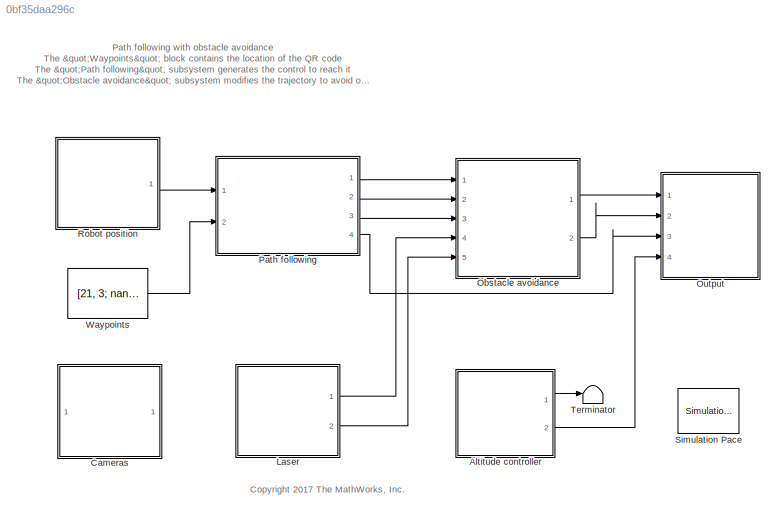
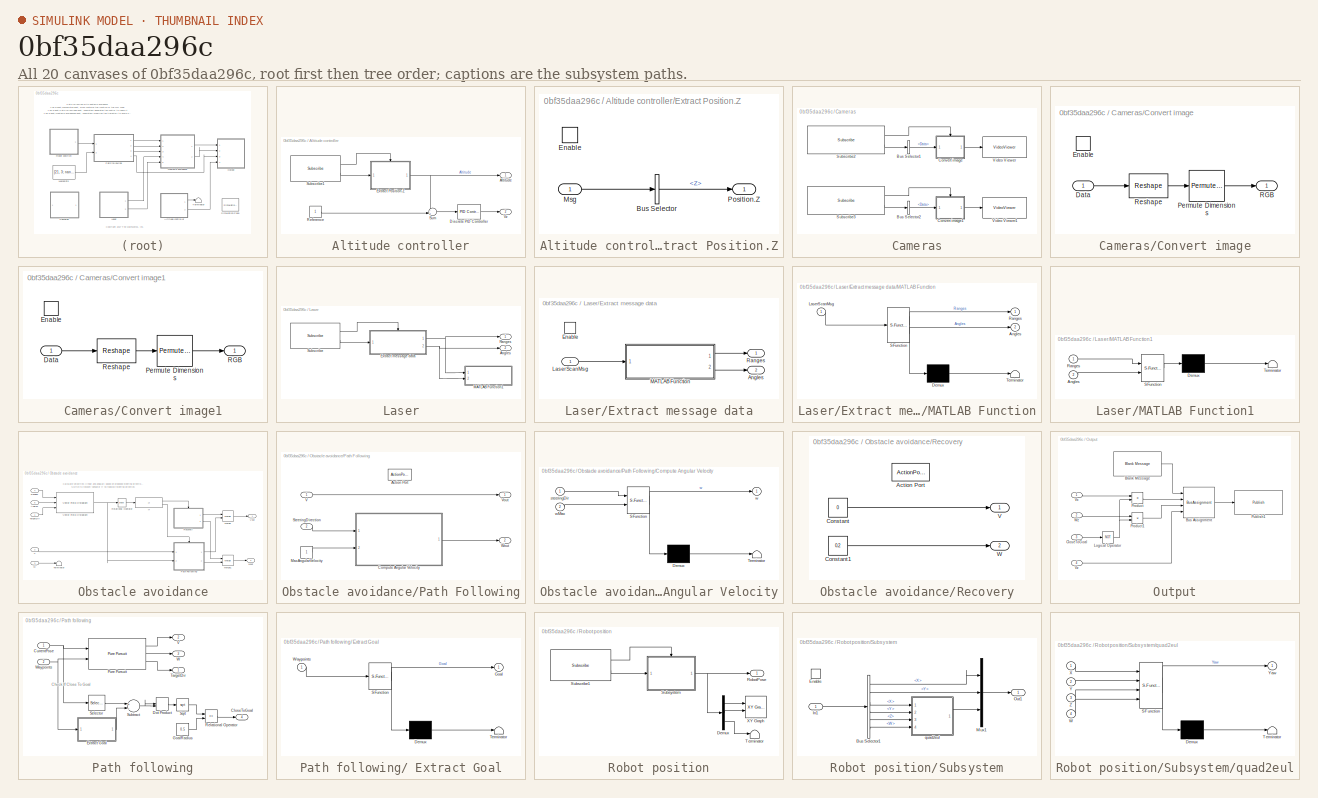
[diagram: thumbnail index - all 20 canvases of the model, root first then tree order]
MODEL slx_0bf35daa296c
KIND model
CONFIG AbsTol = auto
CONFIG EnableMultiTasking = on
CONFIG FixedStep = 0.1
CONFIG MaxStep = auto
CONFIG MinStep = auto
CONFIG RelTol = 1e-3
CONFIG SampleTimeConstraint = Unconstrained
CONFIG Solver = FixedStepDiscrete
CONFIG SolverName = FixedStepDiscrete
CONFIG StartTime = 0.0
CONFIG StopTime = Inf
WORKSPACE source: MAT-file member
WORKSPACE SL_ROS_VariableLengthArrays_MaxSizes: struct (value not decoded)
BLOCK [SubSystem] Altitude controller
  Ports = [0, 2]
  RequestExecContextInheritance = off
  Variant = off
BLOCK [Outport] Altitude controller/Altitude
  IconDisplay = Port number
BLOCK [Reference] Altitude controller/Discrete PID Controller  REF=simulink/Continuous/PID Controller
  Ports = [1, 1]
  SourceBlock = simulink/Continuous/PID Controller
  SourceProductBaseCode = SL
  SourceProductName = Simulink
  SourceType = PID 1dof
BLOCK [SubSystem] Altitude controller/Extract Position.Z
  Ports = [1, 1, 1]
  RequestExecContextInheritance = off
  Variant = off
BLOCK [BusSelector] Altitude controller/Extract Position.Z/Bus Selector
  OutputAsBus = off
  OutputSignals = Pose.Pose.Position.Z
  Ports = [1, 1]
BLOCK [EnablePort] Altitude controller/Extract Position.Z/Enable
  Ports = []
BLOCK [Inport] Altitude controller/Extract Position.Z/Msg
  IconDisplay = Port number
BLOCK [Outport] Altitude controller/Extract Position.Z/Position.Z
  IconDisplay = Port number
BLOCK [Constant] Altitude controller/Reference
BLOCK [Reference] Altitude controller/Subscribe1  REF=robotlib/Subscribe
  Ports = [0, 2]
  SourceBlock = robotlib/Subscribe
  SourceLibraryInfo = This block requires Robotics System Toolbox
  SourceProductBaseCode = RO
  SourceProductName = Robotics System Toolbox
  SourceType = ROS Subscribe
BLOCK [Sum] Altitude controller/Sum
  IconShape = round
  InputSameDT = off
  Inputs = -+|
  OutDataTypeStr = Inherit: Inherit via internal rule
  Ports = [2, 1]
  SaturateOnIntegerOverflow = off
BLOCK [Outport] Altitude controller/Vz
  IconDisplay = Port number
  Port = 2
BLOCK [SubSystem] Cameras
  Ports = []
  RequestExecContextInheritance = off
  Variant = off
BLOCK [BusSelector] Cameras/Bus Selector1
  DialogController = Simulink.DDGSource_BusSelector
  OutputAsBus = off
  OutputSignals = Data
  Ports = [1, 1]
BLOCK [BusSelector] Cameras/Bus Selector2
  DialogController = Simulink.DDGSource_BusSelector
  OutputAsBus = off
  OutputSignals = Data
  Ports = [1, 1]
BLOCK [SubSystem] Cameras/Convert image
  Ports = [1, 1, 1]
  RequestExecContextInheritance = off
  Variant = off
BLOCK [Inport] Cameras/Convert image/Data
  IconDisplay = Port number
BLOCK [EnablePort] Cameras/Convert image/Enable
  Ports = []
BLOCK [PermuteDimensions] Cameras/Convert image/Permute Dimensions
  Order = [3 2 1]
BLOCK [Outport] Cameras/Convert image/RGB
  IconDisplay = Port number
BLOCK [Reshape] Cameras/Convert image/Reshape
  OutputDimensionality = Customize
  OutputDimensions = [3 640 360]
  Ports = [1, 1]
BLOCK [SubSystem] Cameras/Convert image1
  Ports = [1, 1, 1]
  RequestExecContextInheritance = off
  Variant = off
BLOCK [Inport] Cameras/Convert image1/Data
  IconDisplay = Port number
BLOCK [EnablePort] Cameras/Convert image1/Enable
  Ports = []
BLOCK [PermuteDimensions] Cameras/Convert image1/Permute Dimensions
  Order = [3 2 1]
BLOCK [Outport] Cameras/Convert image1/RGB
  IconDisplay = Port number
BLOCK [Reshape] Cameras/Convert image1/Reshape
  OutputDimensionality = Customize
  OutputDimensions = [3 640 360]
  Ports = [1, 1]
BLOCK [Reference] Cameras/Subscribe2  REF=robotlib/Subscribe
  Ports = [0, 2]
  SourceBlock = robotlib/Subscribe
  SourceLibraryInfo = This block requires Robotics System Toolbox
  SourceProductBaseCode = RO
  SourceProductName = Robotics System Toolbox
  SourceType = ROS Subscribe
BLOCK [Reference] Cameras/Subscribe3  REF=robotlib/Subscribe
  Ports = [0, 2]
  SourceBlock = robotlib/Subscribe
  SourceLibraryInfo = This block requires Robotics System Toolbox
  SourceProductBaseCode = RO
  SourceProductName = Robotics System Toolbox
  SourceType = ROS Subscribe
BLOCK [VideoViewer] Cameras/Video Viewer
  FigPos = [947.909090909091 493.709090909091 609.163636363636 376.145454545455]
  Ports = [1]
  ScopeSpecificationString = vipscopes.VideoViewerScopeCfg('CurrentConfiguration', extmgr.ConfigurationSet(extmgr.Configuration('Core','General UI',true),extmgr.Configuration('Core','Source UI',true),extmgr.Configuration('Sources','WiredSimulink',true),extmgr.Configuration('Visuals','Video',true),extmgr.Configuration('Tools','Image Navigation Tools',true),extmgr.Configuration('Tools','Image Tool',true),extmgr.Configuration('T...<+127ch>
  colormapValue = gray(256)
BLOCK [VideoViewer] Cameras/Video Viewer1
  FigPos = [947.909090909091 1019.09090909091 609.163636363636 376.145454545455]
  Ports = [1]
  ScopeSpecificationString = vipscopes.VideoViewerScopeCfg('CurrentConfiguration', extmgr.ConfigurationSet(extmgr.Configuration('Core','General UI',true),extmgr.Configuration('Core','Source UI',true),extmgr.Configuration('Sources','WiredSimulink',true),extmgr.Configuration('Visuals','Video',true),extmgr.Configuration('Tools','Image Navigation Tools',true),extmgr.Configuration('Tools','Image Tool',true),extmgr.Configuration('T...<+127ch>
  colormapValue = gray(256)
BLOCK [SubSystem] Laser
  Ports = [0, 2]
  RequestExecContextInheritance = off
  Variant = off
BLOCK [Outport] Laser/Angles
  IconDisplay = Port number
  Port = 2
BLOCK [SubSystem] Laser/Extract message data
  Ports = [1, 2, 1]
  RequestExecContextInheritance = off
  Variant = off
BLOCK [Outport] Laser/Extract message data/Angles
  IconDisplay = Port number
  Port = 2
BLOCK [EnablePort] Laser/Extract message data/Enable
  Ports = []
BLOCK [Inport] Laser/Extract message data/LaserScanMsg
  IconDisplay = Port number
BLOCK [SubSystem] Laser/Extract message data/MATLAB Function
  ErrorFcn = Stateflow.Translate.translate
  PermitHierarchicalResolution = ExplicitOnly
  Ports = [1, 2]
  RequestExecContextInheritance = off
  SFBlockType = MATLAB Function
  TreatAsAtomicUnit = on
  Variant = off
BLOCK [Demux] Laser/Extract message data/MATLAB Function/ Demux 
  Outputs = 1
  Ports = [1, 1]
BLOCK [S-Function] Laser/Extract message data/MATLAB Function/ SFunction 
  EnableBusSupport = on
  FunctionName = sf_sfun
  PortCounts = [1 3]
  Ports = [1, 3]
  SFcnIsStateOwnerBlock = off
  SFunctionDeploymentMode = off
  Tag = Stateflow S-Function pathFollowingWithObstacleAvoidance 5
BLOCK [Terminator] Laser/Extract message data/MATLAB Function/ Terminator 
BLOCK [Outport] Laser/Extract message data/MATLAB Function/Angles
  IconDisplay = Port number
  Port = 2
BLOCK [Inport] Laser/Extract message data/MATLAB Function/LaserScanMsg
  IconDisplay = Port number
BLOCK [Outport] Laser/Extract message data/MATLAB Function/Ranges
  IconDisplay = Port number
BLOCK [Outport] Laser/Extract message data/Ranges
  IconDisplay = Port number
BLOCK [SubSystem] Laser/MATLAB Function1
  ErrorFcn = Stateflow.Translate.translate
  PermitHierarchicalResolution = ExplicitOnly
  Ports = [2]
  RequestExecContextInheritance = off
  SFBlockType = MATLAB Function
  TreatAsAtomicUnit = on
  Variant = off
BLOCK [Demux] Laser/MATLAB Function1/ Demux 
  Outputs = 1
  Ports = [1, 1]
BLOCK [S-Function] Laser/MATLAB Function1/ SFunction 
  EnableBusSupport = on
  FunctionName = sf_sfun
  PortCounts = [2 1]
  Ports = [2, 1]
  SFcnIsStateOwnerBlock = off
  SFunctionDeploymentMode = off
  Tag = Stateflow S-Function pathFollowingWithObstacleAvoidance 3
BLOCK [Terminator] Laser/MATLAB Function1/ Terminator 
BLOCK [Inport] Laser/MATLAB Function1/Angles
  IconDisplay = Port number
  Port = 2
BLOCK [Inport] Laser/MATLAB Function1/Ranges
  IconDisplay = Port number
BLOCK [Outport] Laser/Ranges
  IconDisplay = Port number
BLOCK [Reference] Laser/Subscribe  REF=robotlib/Subscribe
  Ports = [0, 2]
  SourceBlock = robotlib/Subscribe
  SourceLibraryInfo = This block requires Robotics System Toolbox
  SourceProductBaseCode = RO
  SourceProductName = Robotics System Toolbox
  SourceType = ROS Subscribe
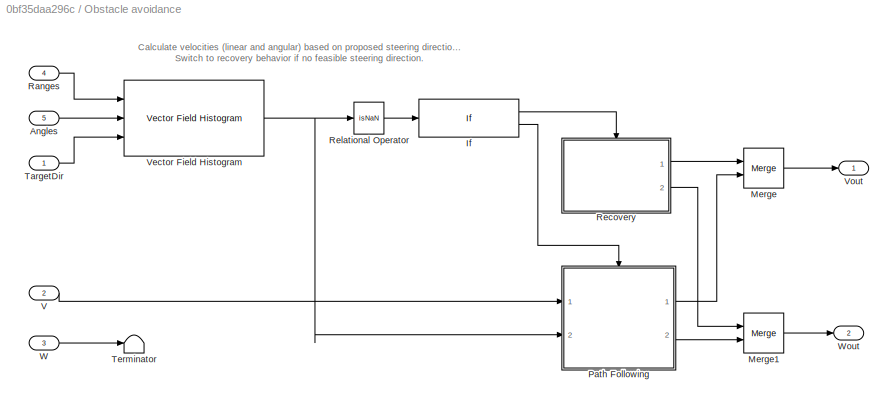
BLOCK [SubSystem] Obstacle avoidance
  Ports = [5, 2]
  RequestExecContextInheritance = off
  Variant = off
BLOCK [Inport] Obstacle avoidance/Angles
  IconDisplay = Port number
  Port = 5
BLOCK [If] Obstacle avoidance/If
  IfExpression = u1 == 1
  Ports = [1, 2]
BLOCK [Merge] Obstacle avoidance/Merge
  Ports = [2, 1]
BLOCK [Merge] Obstacle avoidance/Merge1
  Ports = [2, 1]
BLOCK [SubSystem] Obstacle avoidance/Path Following
  Ports = [2, 2, 0, 0, 0, 0, 0, 1]
  RequestExecContextInheritance = off
  TreatAsAtomicUnit = on
  Variant = off
BLOCK [ActionPort] Obstacle avoidance/Path Following/Action Port
  ActionType = else
BLOCK [SubSystem] Obstacle avoidance/Path Following/Compute Angular Velocity
  ErrorFcn = Stateflow.Translate.translate
  PermitHierarchicalResolution = ExplicitOnly
  Ports = [2, 1]
  RequestExecContextInheritance = off
  SFBlockType = MATLAB Function
  TreatAsAtomicUnit = on
  Variant = off
BLOCK [Demux] Obstacle avoidance/Path Following/Compute Angular Velocity/ Demux 
  Outputs = 1
  Ports = [1, 1]
BLOCK [S-Function] Obstacle avoidance/Path Following/Compute Angular Velocity/ SFunction 
  EnableBusSupport = on
  FunctionName = sf_sfun
  PortCounts = [2 2]
  Ports = [2, 2]
  SFcnIsStateOwnerBlock = off
  SFunctionDeploymentMode = off
  Tag = Stateflow S-Function pathFollowingWithObstacleAvoidance 8
BLOCK [Terminator] Obstacle avoidance/Path Following/Compute Angular Velocity/ Terminator 
BLOCK [Inport] Obstacle avoidance/Path Following/Compute Angular Velocity/steeringDir
  IconDisplay = Port number
BLOCK [Outport] Obstacle avoidance/Path Following/Compute Angular Velocity/w
  IconDisplay = Port number
BLOCK [Inport] Obstacle avoidance/Path Following/Compute Angular Velocity/wMax
  IconDisplay = Port number
  Port = 2
BLOCK [Constant] Obstacle avoidance/Path Following/MaxAngularVelocity
BLOCK [Inport] Obstacle avoidance/Path Following/SteeringDirection
  IconDisplay = Port number
  Port = 2
BLOCK [Inport] Obstacle avoidance/Path Following/V
  IconDisplay = Port number
BLOCK [Outport] Obstacle avoidance/Path Following/Vout
  IconDisplay = Port number
BLOCK [Outport] Obstacle avoidance/Path Following/Wout
  IconDisplay = Port number
  Port = 2
BLOCK [Inport] Obstacle avoidance/Ranges
  IconDisplay = Port number
  Port = 4
BLOCK [SubSystem] Obstacle avoidance/Recovery
  Ports = [0, 2, 0, 0, 0, 0, 0, 1]
  RequestExecContextInheritance = off
  TreatAsAtomicUnit = on
  Variant = off
BLOCK [ActionPort] Obstacle avoidance/Recovery/Action Port
  ActionType = then
BLOCK [Constant] Obstacle avoidance/Recovery/Constant
  Value = 0
BLOCK [Constant] Obstacle avoidance/Recovery/Constant1
  Value = 0.2
BLOCK [Outport] Obstacle avoidance/Recovery/V
  IconDisplay = Port number
BLOCK [Outport] Obstacle avoidance/Recovery/W
  IconDisplay = Port number
  Port = 2
BLOCK [RelationalOperator] Obstacle avoidance/Relational Operator
  InputSameDT = off
  Operator = isNaN
  OutDataTypeStr = boolean
  Ports = [1, 1]
  RndMeth = Simplest
BLOCK [Inport] Obstacle avoidance/TargetDir
  IconDisplay = Port number
BLOCK [Terminator] Obstacle avoidance/Terminator
BLOCK [Inport] Obstacle avoidance/V
  IconDisplay = Port number
  Port = 2
BLOCK [Reference] Obstacle avoidance/Vector Field Histogram  REF=robotalgslib/Vector Field Histogram
  Ports = [3, 1]
  SourceBlock = robotalgslib/Vector Field Histogram
  SourceProductBaseCode = RO
  SourceProductName = Robotics System Toolbox
  SourceType = robotics.VectorFieldHistogram
BLOCK [Outport] Obstacle avoidance/Vout
  IconDisplay = Port number
BLOCK [Inport] Obstacle avoidance/W
  IconDisplay = Port number
  Port = 3
BLOCK [Outport] Obstacle avoidance/Wout
  IconDisplay = Port number
  Port = 2
BLOCK [SubSystem] Output
  Ports = [4]
  RequestExecContextInheritance = off
  Variant = off
BLOCK [Reference] Output/Blank Message  REF=robotlib/Blank Message
  Ports = [0, 1]
  SourceBlock = robotlib/Blank Message
  SourceLibraryInfo = This block requires Robotics System Toolbox
  SourceProductBaseCode = RO
  SourceProductName = Robotics System Toolbox
  SourceType = ROS Blank Message
BLOCK [BusAssignment] Output/Bus Assignment
  AssignedSignals = Linear.X,Angular.Z,Linear.Z
  DialogController = Simulink.DDGSource_BusAssignment
  Ports = [4, 1]
BLOCK [Inport] Output/CloseToGoal
  IconDisplay = Port number
  Port = 3
BLOCK [Logic] Output/Logical Operator
  AllPortsSameDT = off
  Operator = NOT
  OutDataTypeStr = boolean
  Ports = [1, 1]
BLOCK [Product] Output/Product
  InputSameDT = off
  OutDataTypeStr = Inherit: Inherit via internal rule
  Ports = [2, 1]
  RndMeth = Floor
  SaturateOnIntegerOverflow = off
BLOCK [Product] Output/Product1
  InputSameDT = off
  OutDataTypeStr = Inherit: Inherit via internal rule
  Ports = [2, 1]
  RndMeth = Floor
  SaturateOnIntegerOverflow = off
BLOCK [Reference] Output/Publish1  REF=robotlib/Publish
  Ports = [1]
  SourceBlock = robotlib/Publish
  SourceLibraryInfo = This block requires Robotics System Toolbox
  SourceProductBaseCode = RO
  SourceProductName = Robotics System Toolbox
  SourceType = ROS Publish
BLOCK [Inport] Output/Vx
  IconDisplay = Port number
BLOCK [Inport] Output/Vz
  IconDisplay = Port number
  Port = 4
BLOCK [Inport] Output/Wz
  IconDisplay = Port number
  Port = 2
BLOCK [SubSystem] Path following
  Ports = [2, 4]
  RequestExecContextInheritance = off
  Variant = off
BLOCK [SubSystem] Path following/ Extract Goal
  ErrorFcn = Stateflow.Translate.translate
  PermitHierarchicalResolution = ExplicitOnly
  Ports = [1, 1]
  RequestExecContextInheritance = off
  SFBlockType = MATLAB Function
  TreatAsAtomicUnit = on
  Variant = off
BLOCK [Demux] Path following/ Extract Goal/ Demux 
  Outputs = 1
  Ports = [1, 1]
BLOCK [S-Function] Path following/ Extract Goal/ SFunction 
  EnableBusSupport = on
  FunctionName = sf_sfun
  PortCounts = [1 2]
  Ports = [1, 2]
  SFcnIsStateOwnerBlock = off
  SFunctionDeploymentMode = off
  Tag = Stateflow S-Function pathFollowingWithObstacleAvoidance 7
BLOCK [Terminator] Path following/ Extract Goal/ Terminator 
BLOCK [Outport] Path following/ Extract Goal/Goal
  IconDisplay = Port number
BLOCK [Inport] Path following/ Extract Goal/Waypoints
  IconDisplay = Port number
BLOCK [Outport] Path following/CloseToGoal
  IconDisplay = Port number
  Port = 4
BLOCK [Inport] Path following/CurrentPose
  IconDisplay = Port number
BLOCK [DotProduct] Path following/Dot Product
  OutDataTypeStr = Inherit: Inherit via internal rule
BLOCK [Constant] Path following/GoalRadius
  Value = 0.5
BLOCK [Reference] Path following/Pure Pursuit  REF=robotalgslib/Pure Pursuit
  Ports = [2, 3]
  SourceBlock = robotalgslib/Pure Pursuit
  SourceProductBaseCode = RO
  SourceProductName = Robotics System Toolbox
  SourceType = robotics.slalgs.internal.PurePursuit
BLOCK [RelationalOperator] Path following/Relational Operator
  InputSameDT = off
  Operator = <=
  OutDataTypeStr = boolean
  Ports = [2, 1]
  RndMeth = Simplest
BLOCK [Selector] Path following/Selector
  IndexOptions = Index vector (dialog)
  Indices = [1 2]
  InputPortWidth = 3
  OutputSizes = 1
  Ports = [1, 1]
BLOCK [Sqrt] Path following/Sqrt
BLOCK [Sum] Path following/Subtract
  InputSameDT = off
  Inputs = +-
  OutDataTypeStr = Inherit: Inherit via internal rule
  Ports = [2, 1]
  SaturateOnIntegerOverflow = off
BLOCK [Outport] Path following/TargetDir
  IconDisplay = Port number
BLOCK [Outport] Path following/V
  IconDisplay = Port number
  Port = 2
BLOCK [Outport] Path following/W
  IconDisplay = Port number
  Port = 3
BLOCK [Inport] Path following/Waypoints
  IconDisplay = Port number
  Port = 2
BLOCK [SubSystem] Robot position
  Ports = [0, 1]
  RequestExecContextInheritance = off
  Variant = off
BLOCK [Demux] Robot position/Demux
  DisplayOption = bar
  Outputs = 3
  Ports = [1, 3]
BLOCK [Outport] Robot position/RobotPose
  IconDisplay = Port number
BLOCK [Reference] Robot position/Subscribe1  REF=robotlib/Subscribe
  Ports = [0, 2]
  SourceBlock = robotlib/Subscribe
  SourceLibraryInfo = This block requires Robotics System Toolbox
  SourceProductBaseCode = RO
  SourceProductName = Robotics System Toolbox
  SourceType = ROS Subscribe
BLOCK [SubSystem] Robot position/Subsystem
  Ports = [1, 1, 1]
  RequestExecContextInheritance = off
  Variant = off
BLOCK [BusSelector] Robot position/Subsystem/Bus Selector1
  OutputAsBus = off
  OutputSignals = Pose.Pose.Position.X,Pose.Pose.Position.Y,Pose.Pose.Orientation.X,Pose.Pose.Orientation.Y,Pose.Pose.Orientation.Z,Pose.Pose.Orientation.W
  Ports = [1, 6]
BLOCK [EnablePort] Robot position/Subsystem/Enable
  Ports = []
BLOCK [Inport] Robot position/Subsystem/In1
  IconDisplay = Port number
BLOCK [Mux] Robot position/Subsystem/Mux1
  DisplayOption = bar
  Inputs = 3
  Ports = [3, 1]
BLOCK [Outport] Robot position/Subsystem/Out1
  IconDisplay = Port number
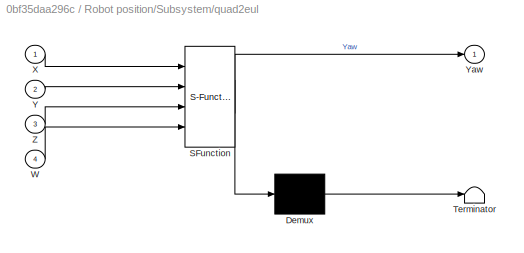
BLOCK [SubSystem] Robot position/Subsystem/quad2eul
  ErrorFcn = Stateflow.Translate.translate
  PermitHierarchicalResolution = ExplicitOnly
  Ports = [4, 1]
  RequestExecContextInheritance = off
  SFBlockType = MATLAB Function
  TreatAsAtomicUnit = on
  Variant = off
BLOCK [Demux] Robot position/Subsystem/quad2eul/ Demux 
  Outputs = 1
  Ports = [1, 1]
BLOCK [S-Function] Robot position/Subsystem/quad2eul/ SFunction 
  EnableBusSupport = on
  FunctionName = sf_sfun
  PortCounts = [4 2]
  Ports = [4, 2]
  SFcnIsStateOwnerBlock = off
  SFunctionDeploymentMode = off
  Tag = Stateflow S-Function pathFollowingWithObstacleAvoidance 1
BLOCK [Terminator] Robot position/Subsystem/quad2eul/ Terminator 
BLOCK [Inport] Robot position/Subsystem/quad2eul/W
  IconDisplay = Port number
  Port = 4
BLOCK [Inport] Robot position/Subsystem/quad2eul/X
  IconDisplay = Port number
BLOCK [Inport] Robot position/Subsystem/quad2eul/Y
  IconDisplay = Port number
  Port = 2
BLOCK [Outport] Robot position/Subsystem/quad2eul/Yaw
  IconDisplay = Port number
BLOCK [Inport] Robot position/Subsystem/quad2eul/Z
  IconDisplay = Port number
  Port = 3
BLOCK [Terminator] Robot position/Terminator
BLOCK [Reference] Robot position/XY Graph  REF=simulink/Sinks/XY Graph
  Ports = [2]
  SourceBlock = simulink/Sinks/XY Graph
  SourceProductBaseCode = SL
  SourceProductName = Simulink
  SourceType = XY scope.
BLOCK [Reference] Simulation Pace  REF=aerolibanimutils/Simulation Pace
  AttributesFormatString = %<SleepMode>\n%<SimulationPace> sec/sec
  Ports = []
  SourceBlock = aerolibanimutils/Simulation Pace
  SourceProductBaseCode = AE
  SourceProductName = Aerospace Blockset
  SourceType = Simulation Pace
BLOCK [Terminator] Terminator
BLOCK [Constant] Waypoints
  OutDataTypeStr = double
  Value = [21, 3; nan, nan]
ANNOTATION (root): Path following with obstacle avoidance The "Waypoints" block contains the location of the QR code The "Path following" subsystem generates the control to reach it The "Obstacle avoidance" subsystem modifies the trajectory to avoid obstacles
ANNOTATION (root): <copyright redacted>
ANNOTATION Obstacle avoidance: Calculate velocities (linear and angular) based on proposed steering direction. Switch to recovery behavior if no feasible steering direction.
ANNOTATION Path following: Check If Close To Goal
LINE Altitude controller/Discrete PID Controller:1 -> Altitude controller/Vz:1
LINE Altitude controller/Extract Position.Z/Bus Selector:1 -> Altitude controller/Extract Position.Z/Position.Z:1
LINE Altitude controller/Extract Position.Z/Msg:1 -> Altitude controller/Extract Position.Z/Bus Selector:1
NET Altitude controller/Extract Position.Z:1 -> Altitude controller/Altitude:1, Altitude controller/Sum:1
LINE Altitude controller/Reference:1 -> Altitude controller/Sum:2
LINE Altitude controller/Subscribe1:1 -> Altitude controller/Extract Position.Z:enable
LINE Altitude controller/Subscribe1:2 -> Altitude controller/Extract Position.Z:1
LINE Altitude controller/Sum:1 -> Altitude controller/Discrete PID Controller:1
LINE Altitude controller:1 -> Terminator:1
LINE Altitude controller:2 -> Output:4
LINE Cameras/Bus Selector1:1 -> Cameras/Convert image:1
LINE Cameras/Bus Selector2:1 -> Cameras/Convert image1:1
LINE Cameras/Convert image/Data:1 -> Cameras/Convert image/Reshape:1
LINE Cameras/Convert image/Permute Dimensions:1 -> Cameras/Convert image/RGB:1
LINE Cameras/Convert image/Reshape:1 -> Cameras/Convert image/Permute Dimensions:1
LINE Cameras/Convert image1/Data:1 -> Cameras/Convert image1/Reshape:1
LINE Cameras/Convert image1/Permute Dimensions:1 -> Cameras/Convert image1/RGB:1
LINE Cameras/Convert image1/Reshape:1 -> Cameras/Convert image1/Permute Dimensions:1
LINE Cameras/Convert image1:1 -> Cameras/Video Viewer1:1
LINE Cameras/Convert image:1 -> Cameras/Video Viewer:1
LINE Cameras/Subscribe2:1 -> Cameras/Convert image:enable
LINE Cameras/Subscribe2:2 -> Cameras/Bus Selector1:1
LINE Cameras/Subscribe3:1 -> Cameras/Convert image1:enable
LINE Cameras/Subscribe3:2 -> Cameras/Bus Selector2:1
LINE Laser/Extract message data/LaserScanMsg:1 -> Laser/Extract message data/MATLAB Function:1
LINE Laser/Extract message data/MATLAB Function:1 -> Laser/Extract message data/Ranges:1
LINE Laser/Extract message data/MATLAB Function:2 -> Laser/Extract message data/Angles:1
NET Laser/Extract message data:1 -> Laser/MATLAB Function1:1, Laser/Ranges:1
NET Laser/Extract message data:2 -> Laser/Angles:1, Laser/MATLAB Function1:2
LINE Laser/Subscribe:1 -> Laser/Extract message data:enable
LINE Laser/Subscribe:2 -> Laser/Extract message data:1
LINE Laser:1 -> Obstacle avoidance:4
LINE Laser:2 -> Obstacle avoidance:5
LINE Obstacle avoidance/Angles:1 -> Obstacle avoidance/Vector Field Histogram:2
LINE Obstacle avoidance/If:1 -> Obstacle avoidance/Recovery:ifaction
LINE Obstacle avoidance/If:2 -> Obstacle avoidance/Path Following:ifaction
LINE Obstacle avoidance/Merge1:1 -> Obstacle avoidance/Wout:1
LINE Obstacle avoidance/Merge:1 -> Obstacle avoidance/Vout:1
LINE Obstacle avoidance/Path Following/Compute Angular Velocity:1 -> Obstacle avoidance/Path Following/Wout:1
LINE Obstacle avoidance/Path Following/MaxAngularVelocity:1 -> Obstacle avoidance/Path Following/Compute Angular Velocity:2
LINE Obstacle avoidance/Path Following/SteeringDirection:1 -> Obstacle avoidance/Path Following/Compute Angular Velocity:1
LINE Obstacle avoidance/Path Following/V:1 -> Obstacle avoidance/Path Following/Vout:1
LINE Obstacle avoidance/Path Following:1 -> Obstacle avoidance/Merge:2
LINE Obstacle avoidance/Path Following:2 -> Obstacle avoidance/Merge1:2
LINE Obstacle avoidance/Ranges:1 -> Obstacle avoidance/Vector Field Histogram:1
LINE Obstacle avoidance/Recovery/Constant1:1 -> Obstacle avoidance/Recovery/W:1
LINE Obstacle avoidance/Recovery/Constant:1 -> Obstacle avoidance/Recovery/V:1
LINE Obstacle avoidance/Recovery:1 -> Obstacle avoidance/Merge:1
LINE Obstacle avoidance/Recovery:2 -> Obstacle avoidance/Merge1:1
LINE Obstacle avoidance/Relational Operator:1 -> Obstacle avoidance/If:1
LINE Obstacle avoidance/TargetDir:1 -> Obstacle avoidance/Vector Field Histogram:3
LINE Obstacle avoidance/V:1 -> Obstacle avoidance/Path Following:1
NET Obstacle avoidance/Vector Field Histogram:1 -> Obstacle avoidance/Path Following:2, Obstacle avoidance/Relational Operator:1
LINE Obstacle avoidance/W:1 -> Obstacle avoidance/Terminator:1
LINE Obstacle avoidance:1 -> Output:1
LINE Obstacle avoidance:2 -> Output:2
LINE Output/Blank Message:1 -> Output/Bus Assignment:1
LINE Output/Bus Assignment:1 -> Output/Publish1:1
LINE Output/CloseToGoal:1 -> Output/Logical Operator:1
NET Output/Logical Operator:1 -> Output/Product1:2, Output/Product:2
LINE Output/Product1:1 -> Output/Bus Assignment:3
LINE Output/Product:1 -> Output/Bus Assignment:2
LINE Output/Vx:1 -> Output/Product:1
LINE Output/Vz:1 -> Output/Bus Assignment:4
LINE Output/Wz:1 -> Output/Product1:1
LINE Path following/ Extract Goal:1 -> Path following/Subtract:2
NET Path following/CurrentPose:1 -> Path following/Pure Pursuit:1, Path following/Selector:1
LINE Path following/Dot Product:1 -> Path following/Sqrt:1
LINE Path following/GoalRadius:1 -> Path following/Relational Operator:2
LINE Path following/Pure Pursuit:1 -> Path following/V:1
LINE Path following/Pure Pursuit:2 -> Path following/W:1
LINE Path following/Pure Pursuit:3 -> Path following/TargetDir:1
LINE Path following/Relational Operator:1 -> Path following/CloseToGoal:1
LINE Path following/Selector:1 -> Path following/Subtract:1
LINE Path following/Sqrt:1 -> Path following/Relational Operator:1
NET Path following/Subtract:1 -> Path following/Dot Product:1, Path following/Dot Product:2
NET Path following/Waypoints:1 -> Path following/ Extract Goal:1, Path following/Pure Pursuit:2
LINE Path following:1 -> Obstacle avoidance:1
LINE Path following:2 -> Obstacle avoidance:2
LINE Path following:3 -> Obstacle avoidance:3
LINE Path following:4 -> Output:3
LINE Robot position/Demux:1 -> Robot position/XY Graph:1
LINE Robot position/Demux:2 -> Robot position/XY Graph:2
LINE Robot position/Demux:3 -> Robot position/Terminator:1
LINE Robot position/Subscribe1:1 -> Robot position/Subsystem:enable
LINE Robot position/Subscribe1:2 -> Robot position/Subsystem:1
LINE Robot position/Subsystem/Bus Selector1:1 -> Robot position/Subsystem/Mux1:1
LINE Robot position/Subsystem/Bus Selector1:2 -> Robot position/Subsystem/Mux1:2
LINE Robot position/Subsystem/Bus Selector1:3 -> Robot position/Subsystem/quad2eul:1
LINE Robot position/Subsystem/Bus Selector1:4 -> Robot position/Subsystem/quad2eul:2
LINE Robot position/Subsystem/Bus Selector1:5 -> Robot position/Subsystem/quad2eul:3
LINE Robot position/Subsystem/Bus Selector1:6 -> Robot position/Subsystem/quad2eul:4
LINE Robot position/Subsystem/In1:1 -> Robot position/Subsystem/Bus Selector1:1
LINE Robot position/Subsystem/Mux1:1 -> Robot position/Subsystem/Out1:1
LINE Robot position/Subsystem/quad2eul:1 -> Robot position/Subsystem/Mux1:3
NET Robot position/Subsystem:1 -> Robot position/Demux:1, Robot position/RobotPose:1
LINE Robot position:1 -> Path following:1
LINE Waypoints:1 -> Path following:2
note: NET lines group one-source signal fan-out (src -> all destinations, sorted); 1:1 wires keep LINE
CHART Robot position/Subsystem/quad2eul states=1 transitions=1
  STATE_LABEL 'eML_blk_kernel()'
  STATE_LABEL 'SCRIPT:\nfunction Yaw = quat2eulBlk(X, Y, Z, W)\n%#codegen\n\neularAngles = quat2eul([W, X, Y, Z]);\nYaw = eularAngles(1);'
CHART Laser/MATLAB Function1 states=1 transitions=1
  STATE_LABEL 'eML_blk_kernel()'
  STATE_LABEL "SCRIPT:\nfunction plotLaser(Ranges, Angles)\ncoder.extrinsic('polarplot');\npersistent p;\nif isempty(p)\n    p = polarplot(0, 0, '.');\n    set(gca, 'ThetaZeroLocation', 'top', 'ThetaLim', [-135 135], ...\n        'RAxisLocation', 0, 'RLim', [0 10]);\nend\nif ishandle(p)\n    set(p, 'ThetaData', Angles);\n    set(p, 'RData', Ranges);\n    drawnow limitrate;\nend\n"
CHART Laser/Extract message data/MATLAB Function states=1 transitions=1
  STATE_LABEL 'eML_blk_kernel()'
  STATE_LABEL "SCRIPT:\nfunction [Ranges, Angles] = ExtractRangeData(LaserScanMsg)\n%#codegen\n\n% Extract Range information\nRanges = double(LaserScanMsg.Ranges);\n\n% Construct Angles vector using AngleMin and AngleIncrement from sensor\n% reading.\nangMin = double(LaserScanMsg.AngleMin);\nangMax = double(LaserScanMsg.AngleMax);\nrawAngles = linspace(angMax, angMin, numel(Ranges)).';\n\n% Wrap the angles to the (-pi,pi] in...<+63ch>"
CHART Path following/ Extract Goal states=1 transitions=1
  STATE_LABEL 'eML_blk_kernel()'
  STATE_LABEL 'SCRIPT:\nfunction Goal = extractGoal(Waypoints)\n%#codegen\nb = isnan(Waypoints);\n[rows,~] = find(b);\nridx = setdiff(1:size(Waypoints,1), sort(rows));\nGoal = [Waypoints(ridx(end), 1) Waypoints(ridx(end), 2)];'
CHART Obstacle avoidance/Path Following/Compute Angular Velocity states=1 transitions=1
  STATE_LABEL 'eML_blk_kernel()'
  STATE_LABEL "SCRIPT:\nfunction w = exampleHelperComputeAngularVelocity(steeringDir, wMax)\n%EXAMPLEHELPERCOMPUTEANGULARVELOCITY Compute angular velocity\n%   W = exampleHelperComputeAngularVelocity(STEERINGDIR)\n%   returns the angular velocity W for a differential drive robot in radians\n%   per second for a given steering direction STEERINGDIR in the robot's\n%   coordinate frame in radians.\n%\n%   W = exampleHelpe...<+1444ch>"
